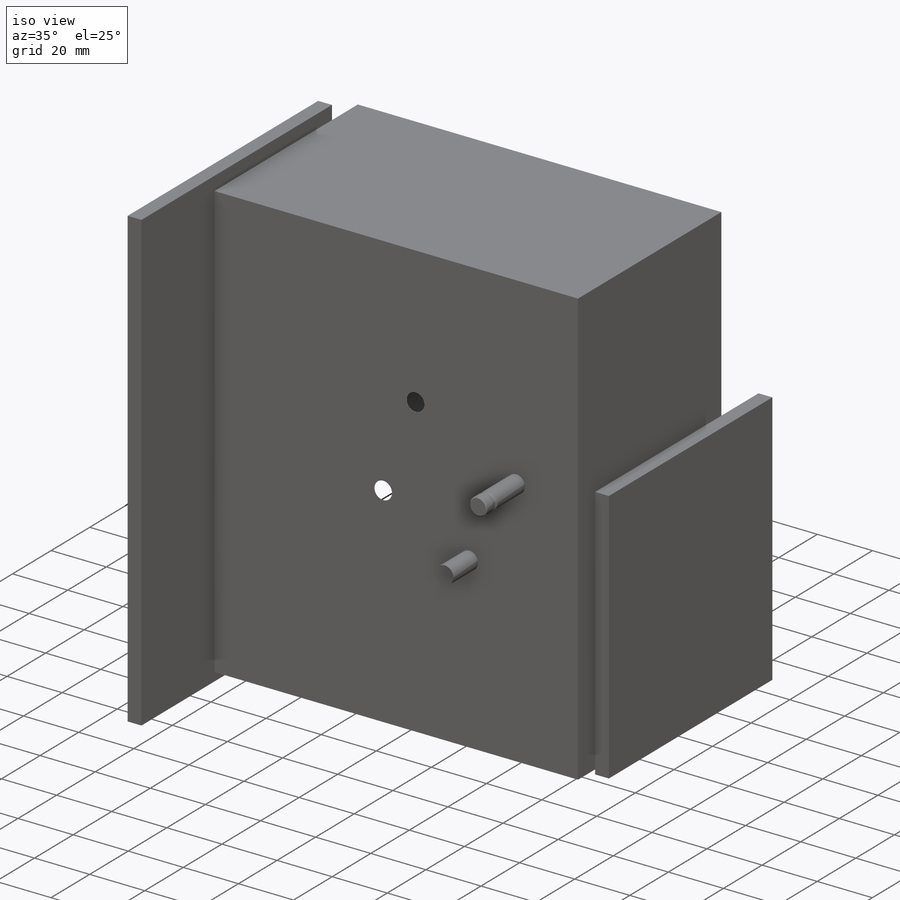
[diagram: iso view]
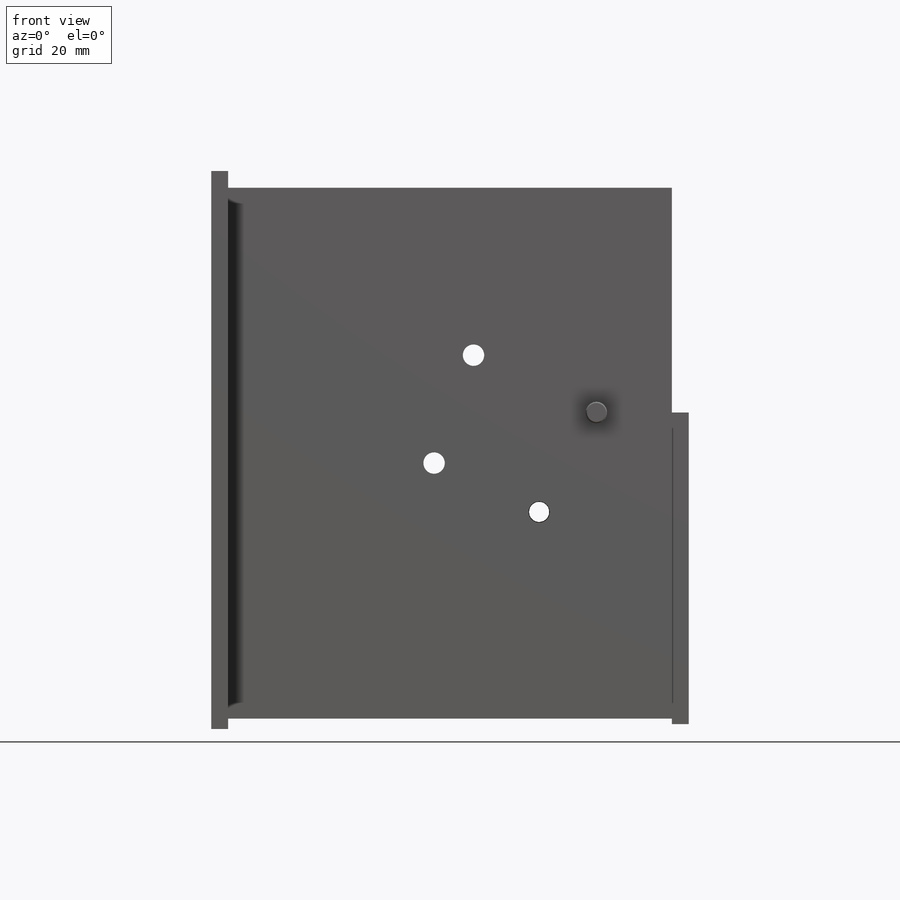
[diagram: front view]
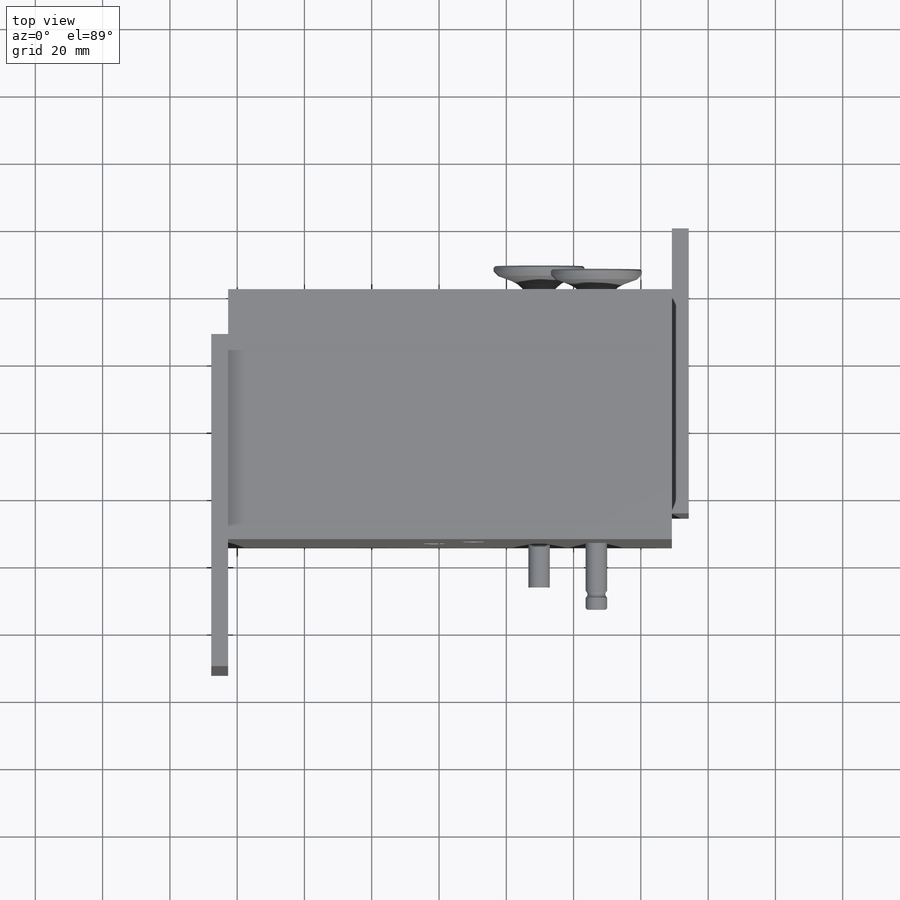
[diagram: top view]
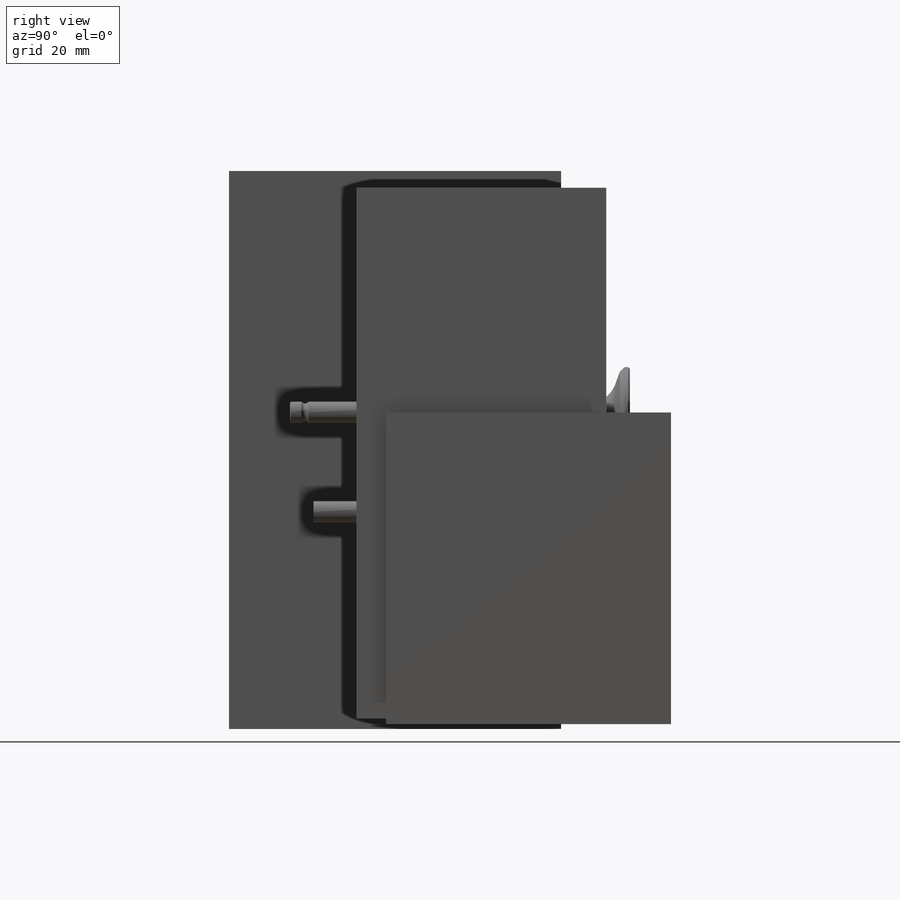
[diagram: right view]
SOLIDWORKS PART (.sldprt)
format: sldprt  version: not decoded by parser v0  size: 4,477,952 bytes
history: native  units: mm
features: sketch x75, plane x16, delete_body x6, fillet x5, move_body x4, boolean_combine x3, revolve x3, material x1, extrude x1, cut_revolve x1, mirror x1 + 8 further entries (+34 scaffold rows collapsed; 3 parser-record rows omitted)
feature tree (161):
  scaffold x34  (default folders/planes/origin — collapsed)
  material  "Материал <не указан>"
  plane  "Спереди"
  plane  "Сверху"
  plane  "Справа"
  sketch  "Эскиз1"  dims[D2=84.2mm D3=11.5mm D4=25.0mm D1=89.0mm]
  sketch  "Эскиз2"  dims[c1.D1=98.7mm c1.D2=200.0mm c1.D3=16.5mm c1.D5=1.0mm c1.D4=73.0mm c2.D1=0.0mm]
  sketch  "Эскиз3"  dims[c1.D1=21.2mm c1.D5=25.0mm c1.D6=33.5mm c1.D8=57.0mm c1.D10=25.0mm c1.D12=25.0mm c1.D13=44.0mm c1.D2=20.0mm c1.D3=~9.747574mm c1.D4=24.7mm c2.D2=24.7mm c2.D4=~26.78124mm c2.D7=3.0mm c2.D9=21.5mm c3.D9=20.0deg c3.D7=~18.190252mm c4.D7=70.0deg c4.D11=~25.841547mm c5.D11=45.0deg c5.D14=34.0mm c5.D15=~1.646678mm]
  sketch  "Эскиз4"  dims[D3=28.5mm D5=8.5mm D6=8.5mm D1=4.0mm D2=4.0mm D4=1.25mm]
  sketch  "Эскиз19"  dims[D1=19.0mm]
  "головкаТМЗ каналы."
  parser-record x3  (decoder bookkeeping rows leaked as tree rows — omitted from the tree; the rows remain in map.json)
  move_body  "Тело-Переместить/Копировать2"
  "Концентричный5"
  "Совпадение3"
  sketch  "Эскиз22"
  sketch  "Эскиз5"  dims[c1.D6=~57.466344mm c1.D8=700.0mm c1.D9=59.0mm c1.D10=30.0mm c1.D11=54.0mm c1.D2=25.0mm c2.D6=75.0mm c2.D2=11.5mm c2.D3=69.0mm c2.D4=96.0mm c3.D6=70.0mm c3.D8=71.0mm c3.D10=53.0mm c3.D12=90.0mm c3.D15=96.0mm c3.D1=4.0mm c3.D2=3.5mm c3.D3=10.0mm c3.D4=2.0mm c3.D5=18.5mm c4.D6=39.0mm c4.D8=~11.254642mm c5.D8=~0.040449deg c6.D8=~44.862962mm c7.D8=10.0deg c7.D1=10.5mm c7.D2=4.0mm c7.D7=~24.42175mm c8.D7=56.0deg c8.D9=~2.019609mm c9.D9=26.0deg c9.D11=~23.989396mm c10.D11=25.0deg c10.D13=~28.873595mm c11.D13=33.0deg c11.D9=45.0mm c11.D14=10.5mm c11.D15=27.0mm c12.D15=4.0deg c12.D9=~1.416355mm c12.D7=3.0mm]
  plane  "Плоскость3"
  sketch  "Эскиз8"  dims[c1.D4=30.0mm c1.D5=4.0mm c1.D7=30.0mm c1.D8=4.0mm c1.D11=3.0mm c1.D14=20.0mm c1.D15=40.0mm c1.D19=2.0mm c1.D1=10.0mm c1.D2=~62.461246mm c2.D2=37.0deg c2.D3=~74.936539mm c3.D3=~1.328092deg c4.D3=~74.936539mm c5.D3=~1.328092deg c6.D3=40.0mm c6.D6=11.0mm c6.D9=8.5mm c6.D10=12.0mm c6.D12=25.0mm c6.D13=26.0mm c6.D16=~26.319377mm c7.D16=46.0deg c7.D17=~15.337913mm c8.D17=27.0deg c8.D18=~125.865007mm c9.D18=60.0deg c9.D2=~28.874969mm c10.D2=41.0deg c10.D6=10.0mm]
  sketch  "Эскиз9"
  sketch  "Эскиз10"  dims[D2=3.0mm D3=50.0mm D1=12.5mm]
  sketch  "Эскиз13"
  sketch  "Эскиз14"
  sketch  "Эскиз15"
  sketch  "Эскиз16"
  sketch  "Эскиз17"
  sketch  "Эскиз18"
  sketch  "Эскиз12"
  plane  "Плоскость1"
  sketch  "Эскиз6"  dims[D3=5.0mm D1=28.0mm D2=32.0mm]
  plane  "Плоскость2"
  sketch  "Эскиз26"  dims[D1=14.0mm]
  sketch  "Эскиз7"  dims[D1=5.0mm]
  plane  "Плоскость5"
  sketch  "Эскиз27"  dims[c1.D1=6.0mm c1.D3=27.0mm c1.D5=6.0mm c1.D6=7.0mm c1.D7=~21.745973mm c1.D8=6.0mm c1.D2=~9.182326mm c2.D2=100.0deg c2.D4=~10.195316mm c3.D4=95.0deg c3.D9=~8.693592mm c4.D9=87.0deg]
  sketch  "Эскиз56"  dims[c1.D3=36.0mm c1.D4=38.0mm c1.D6=61.0mm c1.D8=44.0mm c1.D12=22.0mm c1.D13=70.0mm c1.D14=~70.287564mm c1.D15=40.0mm c2.D14=90.0mm c2.D6=30.0mm c2.D16=35.0mm c2.D17=55.0mm c2.D18=28.0mm c2.D19=55.0mm c2.D1=65.0mm c2.D2=9.0mm c2.D5=23.0mm c2.D7=~12.818452mm c3.D7=100.0deg c3.D9=13.5mm c4.D9=87.0deg c4.D10=~6.336506mm c5.D10=10.0deg c5.D11=~10.420359mm c6.D11=88.0deg c6.D15=~4.912848mm c6.D10=~6.256831mm c7.D10=9.0deg c7.D3=6.2477mm c8.D3=84.0deg c9.D3=~15.376503mm c10.D3=76.0deg c10.D9=~18.944452mm c11.D9=80.0deg c11.D10=~16.739549mm c12.D10=76.0deg]
  delete_body  "Тело-Удалить2"
  extrude  "Вытянуть6"  [1 undecoded]
  fillet  "Скругление3"  Radius=2mm
  delete_body  "Скругление4"
  sketch  "Эскиз38"  dims[c1.D4=5.0mm c1.D2=42.0mm c1.D3=26.0mm c2.D2=27.5mm c2.D1=0.0mm]
  plane  "Плоскость7"
  sketch  "Эскиз39"  dims[c1.D3=19.0mm c1.D4=60.0mm c1.D6=30.0mm c2.D3=3.0mm c2.D4=2.0mm c2.D9=4.0mm c2.D10=40.0mm c2.D13=30.0mm c2.D15=20.0mm c2.D1=8.5mm c2.D2=12.0mm c2.D5=10.0mm c2.D6=31.0mm c2.D7=~32.444869mm c3.D7=10.0deg c3.D8=~45.508923mm c4.D8=33.0deg c4.D9=56.0mm c4.D10=29.0mm c4.D11=~56.288241mm c5.D11=46.0deg c5.D12=~41.223387mm c6.D12=41.0deg c6.D14=~40.981523mm c7.D14=27.0deg]
  sketch  "Эскиз40"
  sketch  "Эскиз41"
  sketch  "Эскиз42"
  sketch  "Эскиз43"
  sketch  "Эскиз44"
  sketch  "Эскиз45"
  sketch  "Эскиз46"
  sketch  "Эскиз47"
  plane  "Плоскость9"
  sketch  "Эскиз51"  dims[D1=7.0mm]
  sketch  "Эскиз48"
  move_body  "По сечениям3"
  delete_body  "Скругление5"
  delete_body  "Скругление6"
  plane  "Плоскость11"
  sketch  "Эскиз57"  dims[c1.D5=28.0mm c1.D7=30.0mm c1.D8=10.0mm c2.D5=30.0mm c2.D9=30.0mm c2.D10=3.0mm c2.D11=30.0mm c2.D1=13.0mm c2.D2=13.0mm c2.D3=27.0mm c2.D4=28.0mm c2.D6=~41.093238mm c3.D6=45.0deg c3.D3=~1.281159mm c4.D3=40.0deg c4.D12=25.0mm]
  plane  "Плоскость12"
  sketch  "Эскиз58"  dims[D1=5.0mm]
  sketch  "Эскиз59"
  sketch  "Эскиз60"
  sketch  "Эскиз61"
  sketch  "Эскиз59<3>"
  sketch  "Эскиз64"
  sketch  "Эскиз65"
  sketch  "Эскиз66"
  sketch  "Эскиз67"
  sketch  "Эскиз62"
  move_body  "По сечениям4"
  plane  "Плоскость13"
  sketch  "Эскиз69"  dims[c1.D2=29.0mm c1.D3=30.0mm c1.D5=10.0mm c1.D6=30.0mm c2.D2=30.0mm c2.D1=~14.810141mm c3.D1=90.0deg c4.D1=13.0mm c4.D4=~93.73966mm c5.D4=52.0deg c5.D7=9.0mm]
  sketch  "Эскиз70"
  sketch  "Эскиз71"
  sketch  "Эскиз72"
  sketch  "Эскиз71<3>"
  sketch  "Эскиз74"
  sketch  "Эскиз75"
  sketch  "Эскиз77"
  sketch  "Эскиз78"
  sketch  "Эскиз73"
  move_body  "По сечениям5"
  sketch  "Эскиз58<2>"
  delete_body  "Скругление7"
  delete_body  "Скругление8"
  plane  "Плоскость8"
  sketch  "Эскиз49"  dims[c1.D1=8.0mm c1.D2=35.3367mm c2.D2=17.0deg]
  sketch  "Эскиз52"  dims[D1=16.0mm]
  sketch  "Эскиз24"  dims[D1=0.0mm]
  sketch  "Эскиз20"
  sketch  "Эскиз21"
  sketch  "Эскиз28"
  "Вытянуть7"
  boolean_combine  "Соединить1"
  sketch  "Эскиз29"  dims[c1.D5=0.3mm c1.D1=15.75mm c1.D2=8.5mm c1.D3=1.8mm c1.D4=~3.239002mm c2.D4=46.0deg c2.D5=10.0mm]
  plane  "Плоскость6"
  sketch  "Эскиз30"
  fillet  "Блок1-2"  [1 undecoded]
  sketch  "Эскиз34"  dims[c1.D3=1.0mm c1.D1=~2.833853mm c2.D1=45.0deg c2.D2=3.0mm c2.D4=2.0mm]
  sketch  "Эскиз53"
  sketch  "Эскиз35"
  fillet  "Блок2-1"  [1 undecoded]
  boolean_combine  "Блок2"
  cut_revolve  "Вырез-Повернуть3"  Angle=360deg
  sketch  "Эскиз36"
  fillet  "Блок3-1"  [1 undecoded]
  boolean_combine  "Блок3"
  revolve  "Повернуть1"  Angle=360deg
  sketch  "Эскиз37"
  plane  "Плоскость10"
  "Эскиз-Массив1"
  sketch  "Эскиз54"
  fillet  "Блок2-2"  Radius=17mm
  sketch  "Эскиз55"
  revolve  "Повернуть2"  Angle=360deg
  revolve  "Повернуть3"  Angle=360deg
  sketch  "Эскиз31"
  "Вытянуть8"
  sketch  "Эскиз32"  dims[D1=0.5mm D2=0.5mm]
  "Вытянуть9"
  sketch  "Эскиз33"  dims[c1.D1=~29.163073mm c2.D1=72.0deg]
  sketch  "Эскиз79"
  "Эскиз-Массив2"
  plane  "Плоскость14"
  mirror  "Зеркальное отражение1"
decode coverage: 32 of 99 modeling features carry decoded parameters; 8 rows unclassified (native names shown)
note: ~ marks probable driven/reference dimensions
note: 4 parameter values undecoded
summary: no parameter record found for 4 features
note: suppression state not decoded; provenance and decode notes live in map.json
